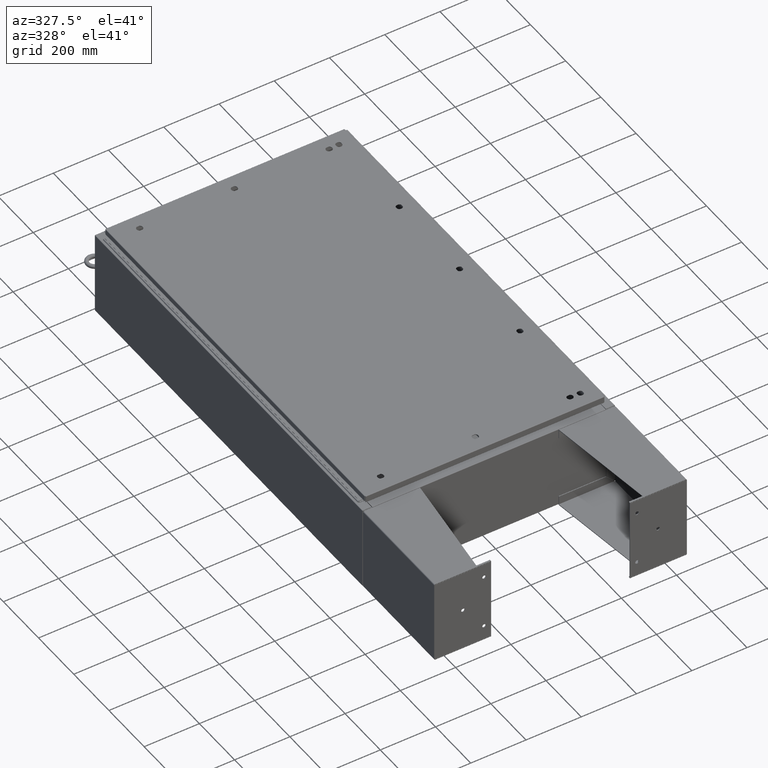
[diagram: clean part render]
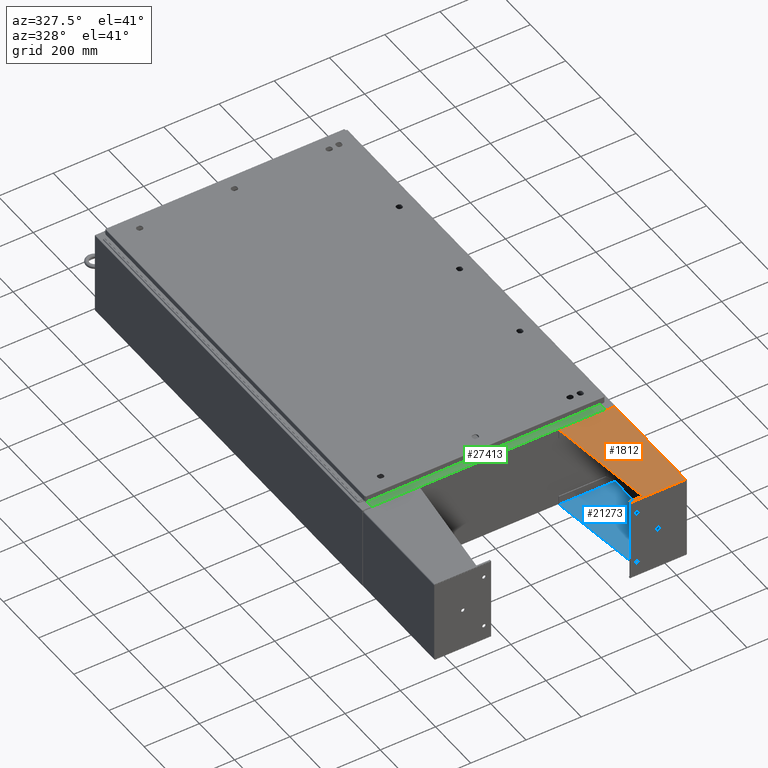
[diagram: same view with three faces highlighted in distinct colors, each labeled with its STEP entity id]
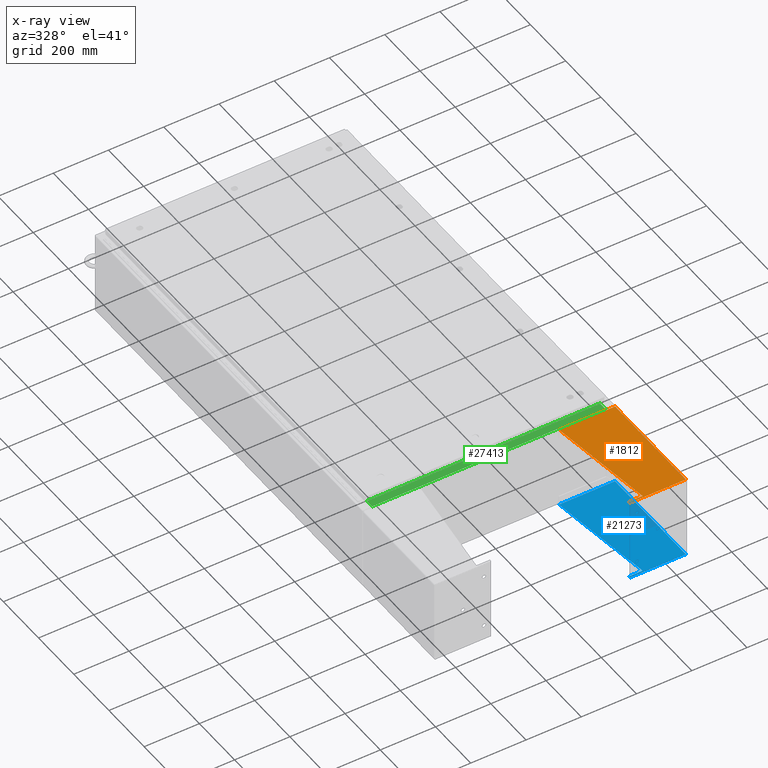
[diagram: x-ray of the same camera — body ghosted, the three highlighted faces saturated]
A machine part, auxiliary view with three faces highlighted in distinct colors.
The next image is the same camera in x-ray (body ghosted, the three faces saturated) — at least one of them is partly hidden behind the body in this view.
Their STEP definitions:

[orange] entity #1812 — the highlighted planar face has unit normal (-0, -0, -1).
#422 = CARTESIAN_POINT ( 'NONE',  ( 6.000000000000029300, -7.999999999999999100, 8.001000000000015400 ) ) ;
#449 = EDGE_CURVE ( 'NONE', #61689, #17574, #37320, .T. ) ;
#907 = EDGE_LOOP ( 'NONE', ( #56939, #17744, #59817, #12034, #52381, #62161 ) ) ;
#1812 = ADVANCED_FACE ( 'NONE', ( #37272 ), #31929, .F. ) ;
#2180 = CARTESIAN_POINT ( 'NONE',  ( 6.000000000000029300, -7.999999999999999100, 8.001000000000015400 ) ) ;
#3639 = LINE ( 'NONE', #10610, #15061 ) ;
#4213 = AXIS2_PLACEMENT_3D ( 'NONE', #42058, #60229, #55990 ) ;
#7182 = VERTEX_POINT ( 'NONE', #422 ) ;
#7525 = DIRECTION ( 'NONE',  ( -3.550958521948298200E-015, -0.0000000000000000000, -1.000000000000000000 ) ) ;
#9800 = CARTESIAN_POINT ( 'NONE',  ( 6.000000000000013300, 7.857000000000001100, 0.03900000000001561900 ) ) ;
#10610 = CARTESIAN_POINT ( 'NONE',  ( 6.000000000000022200, -7.749999999999999100, 6.052216497445950700 ) ) ;
#11625 = VECTOR ( 'NONE', #21257, 39.37007874015748100 ) ;
#12003 = LINE ( 'NONE', #45877, #61859 ) ;
#12034 = ORIENTED_EDGE ( 'NONE', *, *, #449, .F. ) ;
#12522 = VERTEX_POINT ( 'NONE', #16467 ) ;
#15061 = VECTOR ( 'NONE', #37074, 39.37007874015748100 ) ;
#16467 = CARTESIAN_POINT ( 'NONE',  ( 6.000000000000021300, -7.749999999999999100, 6.052216497445950700 ) ) ;
#17574 = VERTEX_POINT ( 'NONE', #32017 ) ;
#17744 = ORIENTED_EDGE ( 'NONE', *, *, #52362, .T. ) ;
#17836 = EDGE_CURVE ( 'NONE', #12522, #36404, #3639, .T. ) ;
#20625 = CARTESIAN_POINT ( 'NONE',  ( 5.999999999999999100, -7.999999999999999100, 0.03900000000001453000 ) ) ;
#20628 = VECTOR ( 'NONE', #41088, 39.37007874015748100 ) ;
#21257 = DIRECTION ( 'NONE',  ( -0.0000000000000000000, -1.000000000000000000, 0.0000000000000000000 ) ) ;
#23955 = CARTESIAN_POINT ( 'NONE',  ( 6.000000000000029300, -7.749999999999999100, 8.001000000000031400 ) ) ;
#24376 = DIRECTION ( 'NONE',  ( 0.0000000000000000000, 0.0000000000000000000, 1.000000000000000000 ) ) ;
#24859 = LINE ( 'NONE', #55718, #44538 ) ;
#26629 = DIRECTION ( 'NONE',  ( 0.0000000000000000000, -1.000000000000000000, 0.0000000000000000000 ) ) ;
#27009 = LINE ( 'NONE', #9800, #51220 ) ;
#29493 = VERTEX_POINT ( 'NONE', #23955 ) ;
#31929 = PLANE ( 'NONE',  #4213 ) ;
#32017 = CARTESIAN_POINT ( 'NONE',  ( 6.000000000000000900, -7.999999999999993800, 0.03899999999999890400 ) ) ;
#36404 = VERTEX_POINT ( 'NONE', #58812 ) ;
#37074 = DIRECTION ( 'NONE',  ( 4.399772607369798900E-016, 0.9922942345449394800, 0.1239038017531047700 ) ) ;
#37147 = CARTESIAN_POINT ( 'NONE',  ( 6.000000000000013300, 7.857000000000001100, 0.03900000000001453000 ) ) ;
#37272 = FACE_OUTER_BOUND ( 'NONE', #907, .T. ) ;
#37320 = LINE ( 'NONE', #20625, #11625 ) ;
#38031 = EDGE_CURVE ( 'NONE', #61689, #36404, #27009, .T. ) ;
#41088 = DIRECTION ( 'NONE',  ( -3.550958521948298200E-015, 0.0000000000000000000, -1.000000000000000000 ) ) ;
#42058 = CARTESIAN_POINT ( 'NONE',  ( 6.000000000000029300, -7.999999999999999100, 8.001000000000015400 ) ) ;
#44538 = VECTOR ( 'NONE', #7525, 39.37007874015748100 ) ;
#45817 = EDGE_CURVE ( 'NONE', #7182, #17574, #57649, .T. ) ;
#45877 = CARTESIAN_POINT ( 'NONE',  ( 6.000000000000029300, -7.999999999999999100, 8.001000000000015400 ) ) ;
#48851 = EDGE_CURVE ( 'NONE', #29493, #12522, #24859, .T. ) ;
#51220 = VECTOR ( 'NONE', #24376, 39.37007874015748100 ) ;
#52362 = EDGE_CURVE ( 'NONE', #29493, #7182, #12003, .T. ) ;
#52381 = ORIENTED_EDGE ( 'NONE', *, *, #38031, .T. ) ;
#55718 = CARTESIAN_POINT ( 'NONE',  ( 6.000000000000029300, -7.749999999999999100, 8.001000000000015400 ) ) ;
#55990 = DIRECTION ( 'NONE',  ( 3.550958521948298200E-015, 0.0000000000000000000, 1.000000000000000000 ) ) ;
#56939 = ORIENTED_EDGE ( 'NONE', *, *, #48851, .F. ) ;
#57649 = LINE ( 'NONE', #2180, #20628 ) ;
#58812 = CARTESIAN_POINT ( 'NONE',  ( 6.000000000000013300, 7.857000000000001100, 8.001000000000013700 ) ) ;
#59817 = ORIENTED_EDGE ( 'NONE', *, *, #45817, .T. ) ;
#60229 = DIRECTION ( 'NONE',  ( -1.000000000000000000, 0.0000000000000000000, 3.550958521948298200E-015 ) ) ;
#61689 = VERTEX_POINT ( 'NONE', #37147 ) ;
#61859 = VECTOR ( 'NONE', #26629, 39.37007874015748100 ) ;
#62161 = ORIENTED_EDGE ( 'NONE', *, *, #17836, .F. ) ;

[blue] entity #21273 — the highlighted planar face has unit normal (-0, 0, 1).
#2578 = ORIENTED_EDGE ( 'NONE', *, *, #38764, .F. ) ;
#2821 = LINE ( 'NONE', #21727, #12657 ) ;
#5512 = VERTEX_POINT ( 'NONE', #27291 ) ;
#5659 = LINE ( 'NONE', #12451, #38175 ) ;
#6649 = VECTOR ( 'NONE', #30044, 39.37007874015748100 ) ;
#6951 = CARTESIAN_POINT ( 'NONE',  ( -5.896000000000015900, 7.857000000000001100, 8.000999999999999400 ) ) ;
#8390 = ORIENTED_EDGE ( 'NONE', *, *, #11315, .F. ) ;
#9306 = LINE ( 'NONE', #38977, #33520 ) ;
#11301 = CARTESIAN_POINT ( 'NONE',  ( -5.896000000000000800, 7.857000000000002000, 0.03900000000000031900 ) ) ;
#11315 = EDGE_CURVE ( 'NONE', #14460, #41025, #22671, .T. ) ;
#12327 = EDGE_CURVE ( 'NONE', #28200, #14460, #33905, .T. ) ;
#12451 = CARTESIAN_POINT ( 'NONE',  ( -5.896000000000030100, -7.999999999999999100, 8.000999999999999400 ) ) ;
#12657 = VECTOR ( 'NONE', #41160, 39.37007874015748100 ) ;
#14460 = VERTEX_POINT ( 'NONE', #11301 ) ;
#14907 = CARTESIAN_POINT ( 'NONE',  ( -5.896000000000000800, 8.000000000000001800, 0.03900000000000031900 ) ) ;
#17842 = ORIENTED_EDGE ( 'NONE', *, *, #41280, .F. ) ;
#18482 = PLANE ( 'NONE',  #55806 ) ;
#21273 = ADVANCED_FACE ( 'NONE', ( #28570 ), #18482, .T. ) ;
#21727 = CARTESIAN_POINT ( 'NONE',  ( -5.896000000000030100, 8.000000000000001800, 8.000999999999999400 ) ) ;
#22671 = LINE ( 'NONE', #14907, #59726 ) ;
#24999 = EDGE_CURVE ( 'NONE', #5512, #39222, #62243, .T. ) ;
#25123 = ORIENTED_EDGE ( 'NONE', *, *, #12327, .F. ) ;
#27291 = CARTESIAN_POINT ( 'NONE',  ( -5.896000000000029200, -7.749999999999999100, 8.001000000000015400 ) ) ;
#28200 = VERTEX_POINT ( 'NONE', #34549 ) ;
#28570 = FACE_OUTER_BOUND ( 'NONE', #29395, .T. ) ;
#28571 = CARTESIAN_POINT ( 'NONE',  ( -5.896000000000030100, -7.999999999999999100, 8.000999999999999400 ) ) ;
#29395 = EDGE_LOOP ( 'NONE', ( #17842, #43438, #2578, #52868, #8390, #25123 ) ) ;
#30044 = DIRECTION ( 'NONE',  ( 0.0000000000000000000, 0.0000000000000000000, -1.000000000000000000 ) ) ;
#33520 = VECTOR ( 'NONE', #43850, 39.37007874015748100 ) ;
#33905 = LINE ( 'NONE', #6951, #6649 ) ;
#34408 = VERTEX_POINT ( 'NONE', #28571 ) ;
#34549 = CARTESIAN_POINT ( 'NONE',  ( -5.896000000000015900, 7.857000000000001100, 8.000999999999999400 ) ) ;
#35718 = DIRECTION ( 'NONE',  ( 3.550958521948298200E-015, 0.0000000000000000000, -1.000000000000000000 ) ) ;
#35938 = CARTESIAN_POINT ( 'NONE',  ( -5.896000000000029200, -7.749999999999999100, 8.001000000000015400 ) ) ;
#36354 = DIRECTION ( 'NONE',  ( 3.550958521948298200E-015, 0.0000000000000000000, -1.000000000000000000 ) ) ;
#37648 = CARTESIAN_POINT ( 'NONE',  ( -5.896000000000030100, 8.000000000000001800, 8.000999999999999400 ) ) ;
#38175 = VECTOR ( 'NONE', #55938, 39.37007874015748100 ) ;
#38764 = EDGE_CURVE ( 'NONE', #34408, #5512, #2821, .T. ) ;
#38977 = CARTESIAN_POINT ( 'NONE',  ( -5.896000000000023900, -7.749999999999999100, 6.052216497445934700 ) ) ;
#39222 = VERTEX_POINT ( 'NONE', #41707 ) ;
#41025 = VERTEX_POINT ( 'NONE', #56519 ) ;
#41160 = DIRECTION ( 'NONE',  ( -0.0000000000000000000, 1.000000000000000000, -0.0000000000000000000 ) ) ;
#41280 = EDGE_CURVE ( 'NONE', #39222, #28200, #9306, .T. ) ;
#41707 = CARTESIAN_POINT ( 'NONE',  ( -5.896000000000021200, -7.749999999999999100, 6.052216497445934700 ) ) ;
#41887 = DIRECTION ( 'NONE',  ( 0.0000000000000000000, -1.000000000000000000, 0.0000000000000000000 ) ) ;
#43438 = ORIENTED_EDGE ( 'NONE', *, *, #24999, .F. ) ;
#43850 = DIRECTION ( 'NONE',  ( -4.399772607369798900E-016, 0.9922942345449394800, 0.1239038017531047700 ) ) ;
#52868 = ORIENTED_EDGE ( 'NONE', *, *, #54471, .F. ) ;
#54471 = EDGE_CURVE ( 'NONE', #41025, #34408, #5659, .T. ) ;
#55806 = AXIS2_PLACEMENT_3D ( 'NONE', #37648, #62163, #36354 ) ;
#55938 = DIRECTION ( 'NONE',  ( -3.550958521948298200E-015, -0.0000000000000000000, 1.000000000000000000 ) ) ;
#56519 = CARTESIAN_POINT ( 'NONE',  ( -5.896000000000000800, -7.999999999999999100, 0.03899999999999923000 ) ) ;
#59726 = VECTOR ( 'NONE', #41887, 39.37007874015748100 ) ;
#60744 = VECTOR ( 'NONE', #35718, 39.37007874015748100 ) ;
#62163 = DIRECTION ( 'NONE',  ( 1.000000000000000000, 0.0000000000000000000, 3.550958521948298200E-015 ) ) ;
#62243 = LINE ( 'NONE', #35938, #60744 ) ;

[green] entity #27413 — the highlighted planar face has unit normal (-0, -0, 1).
#122 = LINE ( 'NONE', #33736, #50047 ) ;
#1493 = DIRECTION ( 'NONE',  ( 0.0000000000000000000, 2.674785894579892700E-015, 1.000000000000000000 ) ) ;
#1799 = VECTOR ( 'NONE', #46340, 39.37007874015748100 ) ;
#5221 = VERTEX_POINT ( 'NONE', #44264 ) ;
#5271 = ORIENTED_EDGE ( 'NONE', *, *, #25798, .F. ) ;
#11959 = PLANE ( 'NONE',  #58667 ) ;
#13911 = CARTESIAN_POINT ( 'NONE',  ( -16.63719999999999600, -0.08769999999999972300, 5.999999999999999100 ) ) ;
#14685 = LINE ( 'NONE', #24479, #1799 ) ;
#15362 = VERTEX_POINT ( 'NONE', #58427 ) ;
#16347 = DIRECTION ( 'NONE',  ( 0.0000000000000000000, -1.000000000000000000, 2.674785894579892700E-015 ) ) ;
#16495 = CARTESIAN_POINT ( 'NONE',  ( -2.276882898771239300E-018, 1.610972251716581800E-014, 5.999999999999999100 ) ) ;
#17025 = VERTEX_POINT ( 'NONE', #13911 ) ;
#20598 = ORIENTED_EDGE ( 'NONE', *, *, #24703, .T. ) ;
#21389 = ORIENTED_EDGE ( 'NONE', *, *, #54042, .F. ) ;
#21408 = LINE ( 'NONE', #49844, #45587 ) ;
#21811 = EDGE_LOOP ( 'NONE', ( #45878, #5271, #21389, #20598 ) ) ;
#22364 = VECTOR ( 'NONE', #56406, 39.37007874015748100 ) ;
#22752 = DIRECTION ( 'NONE',  ( -1.000000000000000000, 0.0000000000000000000, 0.0000000000000000000 ) ) ;
#23868 = LINE ( 'NONE', #41851, #22364 ) ;
#24479 = CARTESIAN_POINT ( 'NONE',  ( -5.156971724347648400E-018, -0.08769999999999972300, 5.999999999999999100 ) ) ;
#24703 = EDGE_CURVE ( 'NONE', #5221, #17025, #14685, .T. ) ;
#25798 = EDGE_CURVE ( 'NONE', #42260, #15362, #122, .T. ) ;
#27413 = ADVANCED_FACE ( 'NONE', ( #37747 ), #11959, .T. ) ;
#33736 = CARTESIAN_POINT ( 'NONE',  ( 16.63720000000000400, -1.287299999999999400, 6.000000000000001800 ) ) ;
#37747 = FACE_OUTER_BOUND ( 'NONE', #21811, .T. ) ;
#41851 = CARTESIAN_POINT ( 'NONE',  ( 16.63720000000000400, -1.300299999999999800, 6.000000000000003600 ) ) ;
#42260 = VERTEX_POINT ( 'NONE', #62315 ) ;
#44264 = CARTESIAN_POINT ( 'NONE',  ( 16.63720000000000400, -0.08769999999999948700, 5.999999999999999100 ) ) ;
#45587 = VECTOR ( 'NONE', #54727, 39.37007874015748100 ) ;
#45878 = ORIENTED_EDGE ( 'NONE', *, *, #49871, .F. ) ;
#46340 = DIRECTION ( 'NONE',  ( -1.000000000000000000, 3.284023746380717400E-017, -8.784060394284559800E-032 ) ) ;
#49844 = CARTESIAN_POINT ( 'NONE',  ( -16.63719999999999600, -0.07469999999999973900, 5.999999999999999100 ) ) ;
#49871 = EDGE_CURVE ( 'NONE', #15362, #17025, #21408, .T. ) ;
#50047 = VECTOR ( 'NONE', #22752, 39.37007874015748100 ) ;
#54042 = EDGE_CURVE ( 'NONE', #5221, #42260, #23868, .T. ) ;
#54727 = DIRECTION ( 'NONE',  ( -0.0000000000000000000, 1.000000000000000000, -2.674785894579892700E-015 ) ) ;
#56406 = DIRECTION ( 'NONE',  ( -0.0000000000000000000, -1.000000000000000000, 3.566381192773190000E-015 ) ) ;
#58427 = CARTESIAN_POINT ( 'NONE',  ( -16.63719999999999600, -1.287299999999998600, 6.000000000000002700 ) ) ;
#58667 = AXIS2_PLACEMENT_3D ( 'NONE', #16495, #1493, #16347 ) ;
#62315 = CARTESIAN_POINT ( 'NONE',  ( 16.63720000000000400, -1.287299999999999400, 6.000000000000003600 ) ) ;